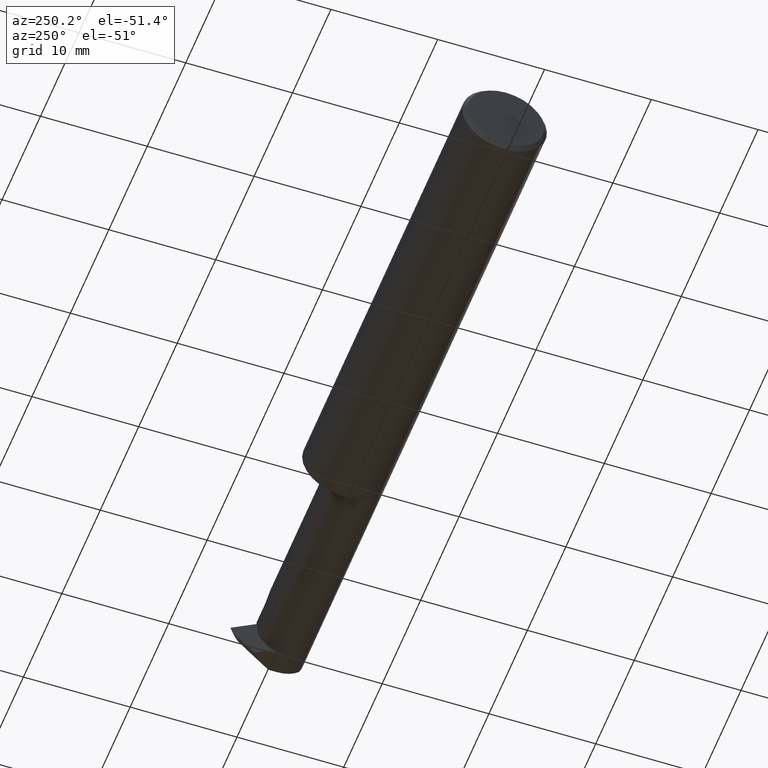
[diagram: clean part render]
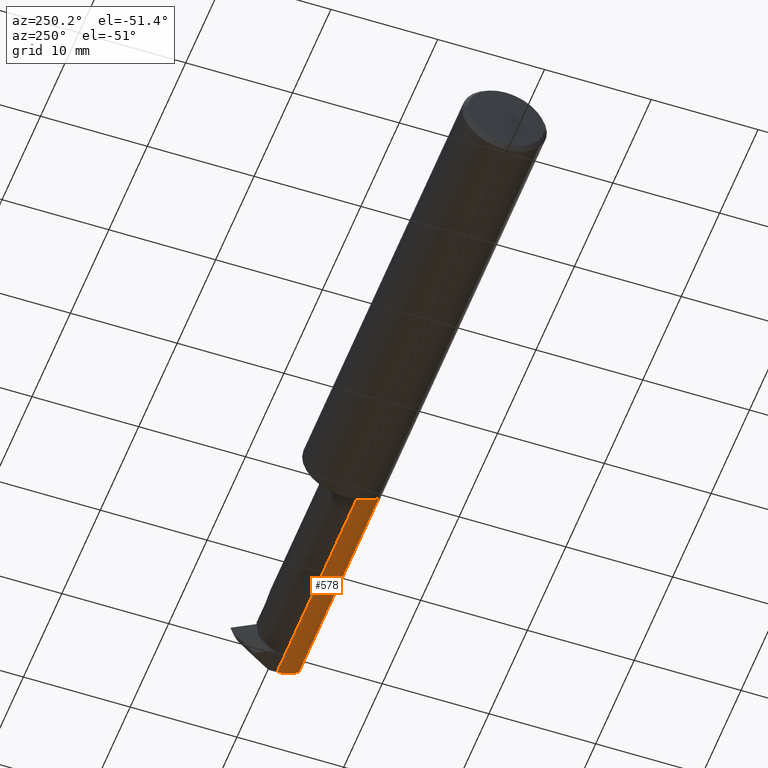
[diagram: same view with one face highlighted and labeled with its STEP entity id]
A machine part, auxiliary view. The second image highlights one B-rep face of the part: STEP entity #578.
In plain terms, the highlighted cylindrical surface (edge-blend (fillet) strip) has radius 2.8194 mm, axis along (-1, -0, -0).
Its self-contained STEP definition (entity closure, byte-faithful):
#8 = CARTESIAN_POINT ( 'NONE',  ( 2.500000000000000000, -0.05510000000000080111, -0.1109999999999999737 ) ) ;
#10 = DIRECTION ( 'NONE',  ( 1.000000000000000000, 0.000000000000000000, 0.000000000000000000 ) ) ;
#18 = VECTOR ( 'NONE', #102, 39.37007874015748143 ) ;
#38 = ORIENTED_EDGE ( 'NONE', *, *, #796, .F. ) ;
#49 = DIRECTION ( 'NONE',  ( 0.000000000000000000, 0.000000000000000000, 1.000000000000000000 ) ) ;
#83 = CARTESIAN_POINT ( 'NONE',  ( 1.655000000000000249, -0.05509999999999999620, 0.000000000000000000 ) ) ;
#99 = VERTEX_POINT ( 'NONE', #8 ) ;
#101 = CARTESIAN_POINT ( 'NONE',  ( 2.500000000000000000, -0.05510000000000080111, -0.1109999999999999737 ) ) ;
#102 = DIRECTION ( 'NONE',  ( -1.000000000000000000, -0.000000000000000000, -0.000000000000000000 ) ) ;
#200 = VERTEX_POINT ( 'NONE', #851 ) ;
#204 = CARTESIAN_POINT ( 'NONE',  ( 1.680000000000000160, -0.1368622504537204410, -0.07507286061382698050 ) ) ;
#208 = DIRECTION ( 'NONE',  ( -1.000000000000000000, -0.000000000000000000, -0.000000000000000000 ) ) ;
#245 = EDGE_LOOP ( 'NONE', ( #778, #700, #38, #787, #740 ) ) ;
#263 = LINE ( 'NONE', #101, #646 ) ;
#303 = DIRECTION ( 'NONE',  ( -1.000000000000000000, -0.000000000000000000, -0.000000000000000000 ) ) ;
#304 = EDGE_CURVE ( 'NONE', #553, #200, #699, .T. ) ;
#378 = VERTEX_POINT ( 'NONE', #204 ) ;
#390 = CARTESIAN_POINT ( 'NONE',  ( 2.419930999995321574, -0.05510000000000081499, -0.1109999999999999876 ) ) ;
#396 = CARTESIAN_POINT ( 'NONE',  ( 1.655000000000000249, -0.05509999999999998233, -0.1110000000000000014 ) ) ;
#445 = EDGE_CURVE ( 'NONE', #728, #378, #947, .T. ) ;
#456 = FACE_OUTER_BOUND ( 'NONE', #245, .T. ) ;
#515 = CARTESIAN_POINT ( 'NONE',  ( 2.500000000000000000, -0.05509999999999999620, 0.000000000000000000 ) ) ;
#534 = VECTOR ( 'NONE', #208, 39.37007874015748143 ) ;
#550 = CIRCLE ( 'NONE', #581, 0.1109999999999999876 ) ;
#553 = VERTEX_POINT ( 'NONE', #390 ) ;
#578 = ADVANCED_FACE ( 'NONE', ( #456 ), #754, .T. ) ;
#581 = AXIS2_PLACEMENT_3D ( 'NONE', #515, #863, #49 ) ;
#593 = CARTESIAN_POINT ( 'NONE',  ( 2.030499999999999972, -0.1368622504537204410, -0.07507286061382698050 ) ) ;
#646 = VECTOR ( 'NONE', #708, 39.37007874015748143 ) ;
#648 = CARTESIAN_POINT ( 'NONE',  ( 2.500000000000000000, -0.1368622504537203854, -0.07507286061382703601 ) ) ;
#656 = EDGE_CURVE ( 'NONE', #99, #553, #263, .T. ) ;
#675 = CIRCLE ( 'NONE', #704, 0.1110000000000000014 ) ;
#699 = LINE ( 'NONE', #396, #18 ) ;
#700 = ORIENTED_EDGE ( 'NONE', *, *, #656, .F. ) ;
#704 = AXIS2_PLACEMENT_3D ( 'NONE', #903, #10, #893 ) ;
#708 = DIRECTION ( 'NONE',  ( -1.000000000000000000, -0.000000000000000000, -0.000000000000000000 ) ) ;
#728 = VERTEX_POINT ( 'NONE', #648 ) ;
#740 = ORIENTED_EDGE ( 'NONE', *, *, #907, .T. ) ;
#754 = CYLINDRICAL_SURFACE ( 'NONE', #933, 0.1110000000000000014 ) ;
#778 = ORIENTED_EDGE ( 'NONE', *, *, #304, .F. ) ;
#787 = ORIENTED_EDGE ( 'NONE', *, *, #445, .T. ) ;
#796 = EDGE_CURVE ( 'NONE', #728, #99, #550, .T. ) ;
#851 = CARTESIAN_POINT ( 'NONE',  ( 1.680000000000000160, -0.05509999999999998233, -0.1110000000000000014 ) ) ;
#863 = DIRECTION ( 'NONE',  ( 1.000000000000000000, -0.000000000000000000, -0.000000000000000000 ) ) ;
#893 = DIRECTION ( 'NONE',  ( 0.000000000000000000, 0.000000000000000000, -1.000000000000000000 ) ) ;
#898 = DIRECTION ( 'NONE',  ( 0.000000000000000000, 0.000000000000000000, 1.000000000000000000 ) ) ;
#903 = CARTESIAN_POINT ( 'NONE',  ( 1.680000000000000160, -0.05509999999999999620, 0.000000000000000000 ) ) ;
#907 = EDGE_CURVE ( 'NONE', #378, #200, #675, .T. ) ;
#933 = AXIS2_PLACEMENT_3D ( 'NONE', #83, #303, #898 ) ;
#947 = LINE ( 'NONE', #593, #534 ) ;